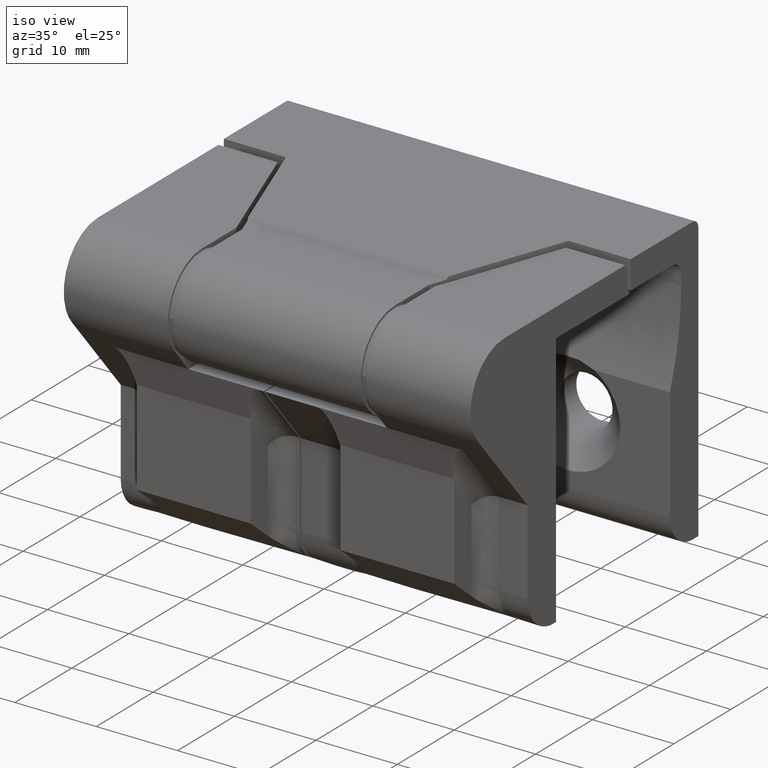
[diagram: clean part render]
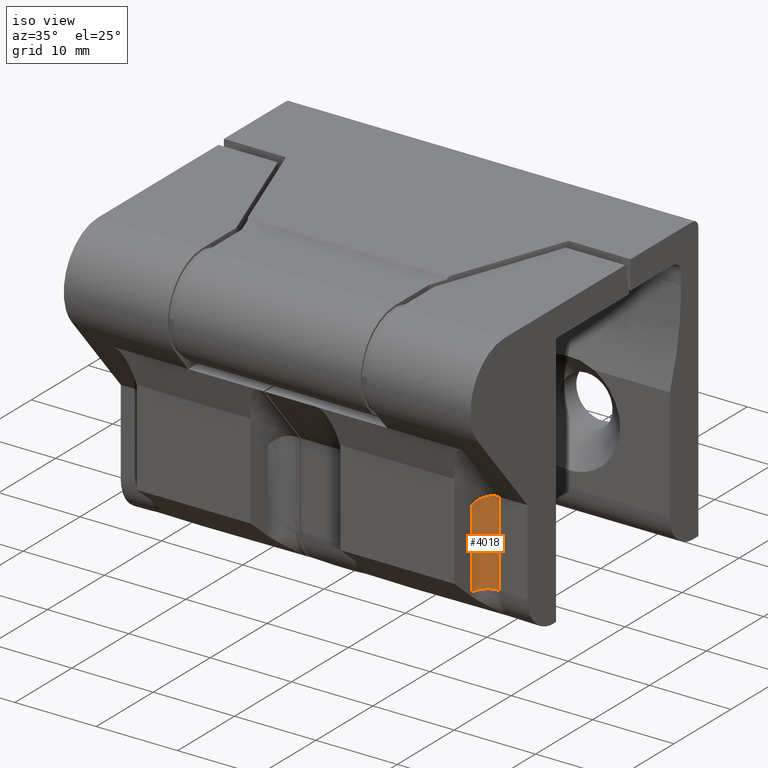
[diagram: same view with one face highlighted and labeled with its STEP entity id]
A machine part, iso view. The second image highlights one B-rep face of the part: STEP entity #4018.
In plain terms, the highlighted face is a freeform B-spline surface patch.
Its self-contained STEP definition (entity closure, byte-faithful):
#3407=CARTESIAN_POINT('',(21.500000000000000,-30.0,4.500000000037150));
#3408=VERTEX_POINT('',#3407);
#3481=CARTESIAN_POINT('',(21.500000000000000,-30.0,14.898642668437240));
#3482=VERTEX_POINT('',#3481);
#3488=CARTESIAN_POINT('',(21.500000000000000,-30.0,14.898642668437240));
#3489=CARTESIAN_POINT('',(21.500000000000000,-30.0,4.500000000037150));
#3490=QUASI_UNIFORM_CURVE('',1,(#3488,#3489),.UNSPECIFIED.,.F.,.U.);
#3491=EDGE_CURVE('',#3482,#3408,#3490,.T.);
#3922=CARTESIAN_POINT('',(19.500000000000000,-32.0,4.500000000037150));
#3923=VERTEX_POINT('',#3922);
#3924=CARTESIAN_POINT('',(21.500000000000000,-30.0,4.500000000037150));
#3925=CARTESIAN_POINT('',(19.499999999999989,-30.000000000000004,4.500000000037150));
#3926=CARTESIAN_POINT('',(19.500000000000000,-32.0,4.500000000037150));
#3934=(BOUNDED_CURVE()B_SPLINE_CURVE(2,(#3924,#3925,#3926),.UNSPECIFIED.,.F.,.U.)CURVE()GEOMETRIC_REPRESENTATION_ITEM()QUASI_UNIFORM_CURVE()RATIONAL_B_SPLINE_CURVE((1.0,0.707106781186548,1.0))REPRESENTATION_ITEM(''));
#3935=EDGE_CURVE('',#3408,#3923,#3934,.T.);
#3980=CARTESIAN_POINT('',(19.500685350048890,-32.052353896615749,4.240033933327147));
#3981=CARTESIAN_POINT('',(19.500685350048890,-32.052353896615749,15.165107886814990));
#3982=CARTESIAN_POINT('',(19.443015479667476,-29.850030398890567,4.240033933327147));
#3983=CARTESIAN_POINT('',(19.443015479667476,-29.850030398890567,15.165107886814985));
#3984=CARTESIAN_POINT('',(21.640640151251969,-30.004951041238389,4.240033933327147));
#3985=CARTESIAN_POINT('',(21.640640151251969,-30.004951041238389,15.165107886814990));
#3993=(BOUNDED_SURFACE()B_SPLINE_SURFACE(1,2,((#3980,#3982,#3984),(#3981,#3983,#3985)),.UNSPECIFIED.,.F.,.F.,.U.)B_SPLINE_SURFACE_WITH_KNOTS((2,2),(3,3),(0.0,10.925073953487850),(0.0,3.542284688176720),.UNSPECIFIED.)GEOMETRIC_REPRESENTATION_ITEM()RATIONAL_B_SPLINE_SURFACE(((1.0,0.670944223154768,0.996392648609106),(1.0,0.670944223154768,0.996392648609106)))REPRESENTATION_ITEM('')SURFACE());
#3994=CARTESIAN_POINT('',(19.500000000000000,-32.0,14.170702199904641));
#3995=VERTEX_POINT('',#3994);
#3996=CARTESIAN_POINT('',(21.500000000000000,-30.0,14.898642668437249));
#3997=CARTESIAN_POINT('',(19.500000084293692,-30.0,14.898642668437244));
#3998=CARTESIAN_POINT('',(19.500000000000000,-31.999999915706301,14.170702230585039));
#4006=(BOUNDED_CURVE()B_SPLINE_CURVE(2,(#3996,#3997,#3998),.UNSPECIFIED.,.F.,.U.)CURVE()GEOMETRIC_REPRESENTATION_ITEM()QUASI_UNIFORM_CURVE()RATIONAL_B_SPLINE_CURVE((1.0,0.707106796087709,1.0))REPRESENTATION_ITEM(''));
#4007=EDGE_CURVE('',#3482,#3995,#4006,.T.);
#4008=ORIENTED_EDGE('',*,*,#4007,.T.);
#4009=CARTESIAN_POINT('',(19.500000000000000,-32.0,4.500000000037150));
#4010=CARTESIAN_POINT('',(19.500000000000000,-32.0,14.170702199904641));
#4011=QUASI_UNIFORM_CURVE('',1,(#4009,#4010),.UNSPECIFIED.,.F.,.U.);
#4012=EDGE_CURVE('',#3923,#3995,#4011,.T.);
#4013=ORIENTED_EDGE('',*,*,#4012,.F.);
#4014=ORIENTED_EDGE('',*,*,#3935,.F.);
#4015=ORIENTED_EDGE('',*,*,#3491,.F.);
#4016=EDGE_LOOP('',(#4008,#4013,#4014,#4015));
#4017=FACE_OUTER_BOUND('',#4016,.T.);
#4018=ADVANCED_FACE('',(#4017),#3993,.F.);